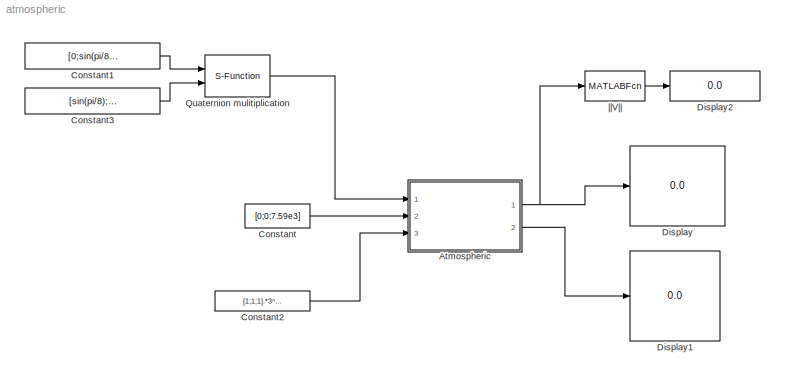
MODEL atmospheric
KIND model
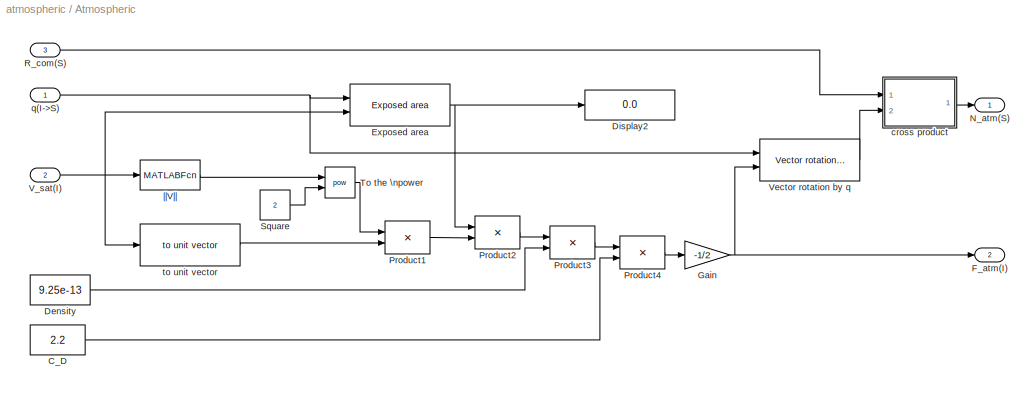
BLOCK [SubSystem] Atmospheric
  AncestorBlock = atmospheric_lib/Atmospheric
  MinAlgLoopOccurrences = off
  Ports = [3, 2]
  RTWSystemCode = Auto
  TreatAsAtomicUnit = off
BLOCK [Constant] Atmospheric/C_D
  Value = 2.2
BLOCK [Constant] Atmospheric/Density
  Value = 9.25e-13
BLOCK [Display] Atmospheric/Display2
  Decimation = 1
  Ports = [1]
BLOCK [Reference] Atmospheric/Exposed area  REF=exposed_area_lib/Exposed area
  Ports = [2, 1]
  ShowPortLabels = on
  SourceBlock = exposed_area_lib/Exposed area
  SourceType = SubSystem
BLOCK [Outport] Atmospheric/F_atm(I)
  BusOutputAsStruct = off
  IconDisplay = Port number
  Port = 2
BLOCK [Gain] Atmospheric/Gain
  Gain = -1/2
BLOCK [Outport] Atmospheric/N_atm(S)
  BusOutputAsStruct = off
  IconDisplay = Port number
BLOCK [Product] Atmospheric/Product1
  InputSameDT = off
  Ports = [2, 1]
  RndMeth = Floor
BLOCK [Product] Atmospheric/Product2
  InputSameDT = off
  Ports = [2, 1]
  RndMeth = Floor
BLOCK [Product] Atmospheric/Product3
  InputSameDT = off
  Ports = [2, 1]
  RndMeth = Floor
BLOCK [Product] Atmospheric/Product4
  InputSameDT = off
  Ports = [2, 1]
  RndMeth = Floor
BLOCK [Inport] Atmospheric/R_com(S)
  IconDisplay = Port number
  LatchInput = off
  Port = 3
BLOCK [Constant] Atmospheric/Square
  Value = 2
BLOCK [Math] Atmospheric/To the \npower
  Operator = pow
  Ports = [2, 1]
BLOCK [Inport] Atmospheric/V_sat(I)
  IconDisplay = Port number
  LatchInput = off
  Port = 2
BLOCK [Reference] Atmospheric/Vector rotation by q  REF=Accessories_lib/Math utilities/Vector operations/Vector rotation by q
  Ports = [2, 1]
  ShowPortLabels = on
  SourceBlock = Accessories_lib/Math utilities/Vector operations/Vector rotation by q
  SourceType = SubSystem
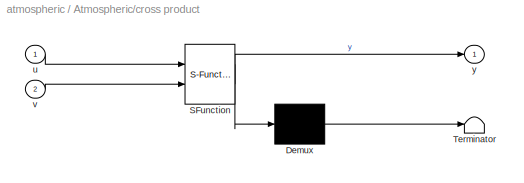
BLOCK [SubSystem] Atmospheric/cross product
  MaskDescription = Embedded MATLAB block
  MaskDisplay = disp('crossproduct');
  MaskIconFrame = on
  MaskIconOpaque = off
  MaskIconRotate = none
  MaskIconUnits = autoscale
  MaskSelfModifiable = on
  MaskType = Stateflow
  MinAlgLoopOccurrences = off
  Ports = [2, 1]
  RTWSystemCode = Auto
  TreatAsAtomicUnit = off
BLOCK [Demux] Atmospheric/cross product/ Demux 
  Outputs = 1
  Ports = [1, 1]
BLOCK [S-Function] Atmospheric/cross product/ SFunction 
  FunctionName = sf_sfun
  PortCounts = [2 2]
  Ports = [2, 2]
  Tag = Stateflow S-Function atmospheric 1
BLOCK [Terminator] Atmospheric/cross product/ Terminator 
BLOCK [Inport] Atmospheric/cross product/u
  IconDisplay = Port number
  LatchInput = off
  Port = 1
BLOCK [Inport] Atmospheric/cross product/v
  IconDisplay = Port number
  LatchInput = off
  Port = 2
BLOCK [Outport] Atmospheric/cross product/y
  BusOutputAsStruct = off
  IconDisplay = Port number
BLOCK [Inport] Atmospheric/q(I->S)
  IconDisplay = Port number
  LatchInput = off
  Port = 1
BLOCK [Reference] Atmospheric/to unit vector  REF=Accessories_lib/Math utilities/Vector operations/to unit vector
  Ports = [1, 1]
  ShowPortLabels = on
  SourceBlock = Accessories_lib/Math utilities/Vector operations/to unit vector
  SourceType = SubSystem
BLOCK [MATLABFcn] Atmospheric/||V||
  MATLABFcn = norm
BLOCK [Constant] Constant
  Value = [0;0;7.59e3]
BLOCK [Constant] Constant1
  Value = [0;sin(pi/8);0;cos(pi/8)]
BLOCK [Constant] Constant2
  Value = [1;1;1].*3^(-.5).*.02
BLOCK [Constant] Constant3
  Value = [sin(pi/8);0;0;cos(pi/8)]
BLOCK [Display] Display
  Decimation = 1
  Ports = [1]
BLOCK [Display] Display1
  Decimation = 1
  Ports = [1]
BLOCK [Display] Display2
  Decimation = 1
  Ports = [1]
BLOCK [S-Function] Quaternion mulitiplication
  FunctionName = qmul
  Ports = [2, 1]
BLOCK [MATLABFcn] ||V||
  MATLABFcn = norm
LINE Atmospheric/C_D:1 -> Atmospheric/Product4:2
LINE Atmospheric/Density:1 -> Atmospheric/Product3:2
NET Atmospheric/Exposed area:1 -> Atmospheric/Display2:1, Atmospheric/Product2:1
NET Atmospheric/Gain:1 -> Atmospheric/F_atm(I):1, Atmospheric/Vector rotation by q:2
LINE Atmospheric/Product1:1 -> Atmospheric/Product2:2
LINE Atmospheric/Product2:1 -> Atmospheric/Product3:1
LINE Atmospheric/Product3:1 -> Atmospheric/Product4:1
LINE Atmospheric/Product4:1 -> Atmospheric/Gain:1
LINE Atmospheric/R_com(S):1 -> Atmospheric/cross product:1
LINE Atmospheric/Square:1 -> Atmospheric/To the \npower:2
LINE Atmospheric/To the \npower:1 -> Atmospheric/Product1:1
NET Atmospheric/V_sat(I):1 -> Atmospheric/Exposed area:2, Atmospheric/to unit vector:1, Atmospheric/||V||:1
LINE Atmospheric/Vector rotation by q:1 -> Atmospheric/cross product:2
LINE Atmospheric/cross product/ Demux :1 -> Atmospheric/cross product/ Terminator :1
LINE Atmospheric/cross product/ SFunction :1 -> Atmospheric/cross product/ Demux :1
LINE Atmospheric/cross product/ SFunction :2 -> Atmospheric/cross product/y:1
LINE Atmospheric/cross product/u:1 -> Atmospheric/cross product/ SFunction :1
LINE Atmospheric/cross product/v:1 -> Atmospheric/cross product/ SFunction :2
LINE Atmospheric/cross product:1 -> Atmospheric/N_atm(S):1
NET Atmospheric/q(I->S):1 -> Atmospheric/Exposed area:1, Atmospheric/Vector rotation by q:1
LINE Atmospheric/to unit vector:1 -> Atmospheric/Product1:2
LINE Atmospheric/||V||:1 -> Atmospheric/To the \npower:1
NET Atmospheric:1 -> Display:1, ||V||:1
LINE Atmospheric:2 -> Display1:1
LINE Constant1:1 -> Quaternion mulitiplication:1
LINE Constant2:1 -> Atmospheric:3
LINE Constant3:1 -> Quaternion mulitiplication:2
LINE Constant:1 -> Atmospheric:2
LINE Quaternion mulitiplication:1 -> Atmospheric:1
LINE ||V||:1 -> Display2:1
note: NET lines group one-source signal fan-out (src -> all destinations, sorted); 1:1 wires keep LINE
CHART Atmospheric/cross product states=1 transitions=1
  STATE_LABEL 'eML_blk_kernel()'
